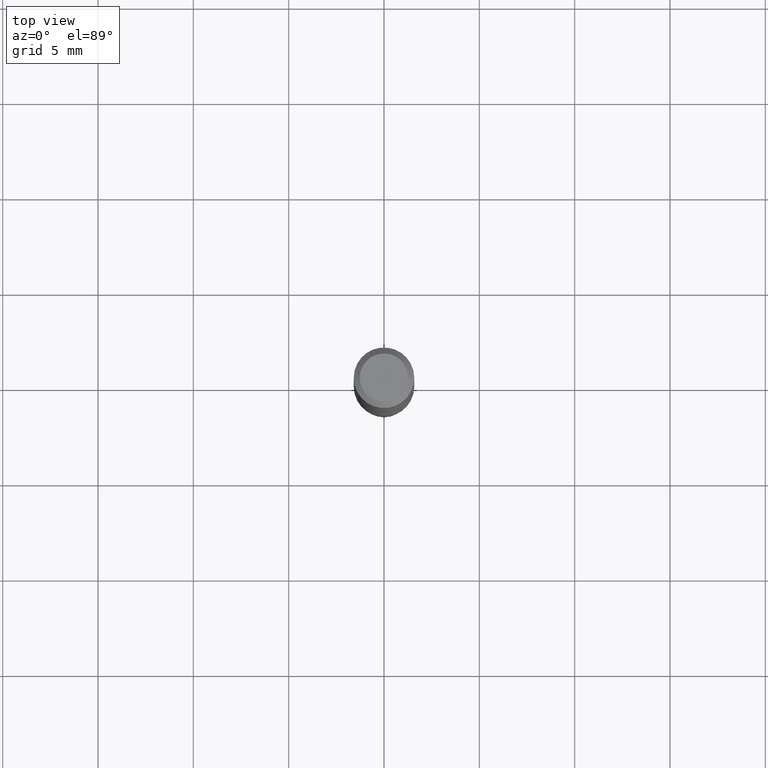
[diagram: clean part render]
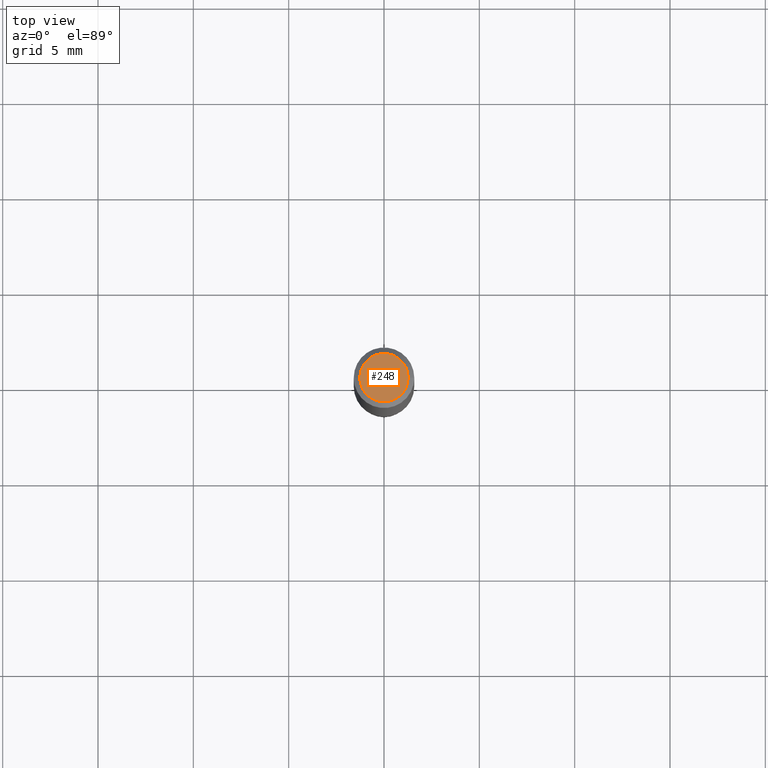
[diagram: same view with one face highlighted and labeled with its STEP entity id]
A machine part, top view. The second image highlights one B-rep face of the part: STEP entity #248.
In plain terms, the highlighted planar face has unit normal (0, -0, -1).
Its self-contained STEP definition (entity closure, byte-faithful):
#15 = EDGE_CURVE ( 'NONE', #149, #457, #314, .T. ) ;
#62 = AXIS2_PLACEMENT_3D ( 'NONE', #340, #230, #444 ) ;
#93 = DIRECTION ( 'NONE',  ( 1.000000000000000000, -6.982962677686265922E-15, 4.875957971899673662E-29 ) ) ;
#112 = DIRECTION ( 'NONE',  ( -2.445468806185136597E-29, 3.491481338843145583E-15, 1.000000000000000000 ) ) ;
#115 = PLANE ( 'NONE',  #62 ) ;
#149 = VERTEX_POINT ( 'NONE', #373 ) ;
#192 = EDGE_LOOP ( 'NONE', ( #386, #195 ) ) ;
#195 = ORIENTED_EDGE ( 'NONE', *, *, #15, .T. ) ;
#199 = EDGE_CURVE ( 'NONE', #457, #149, #281, .T. ) ;
#205 = CARTESIAN_POINT ( 'NONE',  ( 3.893286209682126177E-47, -5.558580879666067980E-33, -1.592040838891559689E-18 ) ) ;
#230 = DIRECTION ( 'NONE',  ( 2.438088387897960049E-29, -3.491481338843145188E-15, -1.000000000000000000 ) ) ;
#248 = ADVANCED_FACE ( 'NONE', ( #413 ), #115, .F. ) ;
#281 = CIRCLE ( 'NONE', #360, 0.04999999999999999584 ) ;
#314 = CIRCLE ( 'NONE', #490, 0.04999999999999999584 ) ;
#340 = CARTESIAN_POINT ( 'NONE',  ( 1.946643104841063088E-47, -2.779290439833033990E-33, -7.960204194457798443E-19 ) ) ;
#358 = DIRECTION ( 'NONE',  ( -2.445468806185136597E-29, 3.491481338843145583E-15, 1.000000000000000000 ) ) ;
#360 = AXIS2_PLACEMENT_3D ( 'NONE', #439, #112, #396 ) ;
#373 = CARTESIAN_POINT ( 'NONE',  ( 0.04999999999999999584, -4.077247707424184212E-16, -1.592040838888913461E-18 ) ) ;
#386 = ORIENTED_EDGE ( 'NONE', *, *, #199, .T. ) ;
#396 = DIRECTION ( 'NONE',  ( 1.000000000000000000, -6.982962677686265922E-15, 4.875957971899673662E-29 ) ) ;
#413 = FACE_OUTER_BOUND ( 'NONE', #192, .T. ) ;
#439 = CARTESIAN_POINT ( 'NONE',  ( 3.893286209682126177E-47, -5.558580879666067980E-33, -1.592040838891559689E-18 ) ) ;
#444 = DIRECTION ( 'NONE',  ( -1.000000000000000000, 6.982962677686265922E-15, -4.876176775795935793E-29 ) ) ;
#455 = CARTESIAN_POINT ( 'NONE',  ( -0.04999999999999999584, 3.709698922520826725E-16, -1.592040838894077649E-18 ) ) ;
#457 = VERTEX_POINT ( 'NONE', #455 ) ;
#490 = AXIS2_PLACEMENT_3D ( 'NONE', #205, #358, #93 ) ;